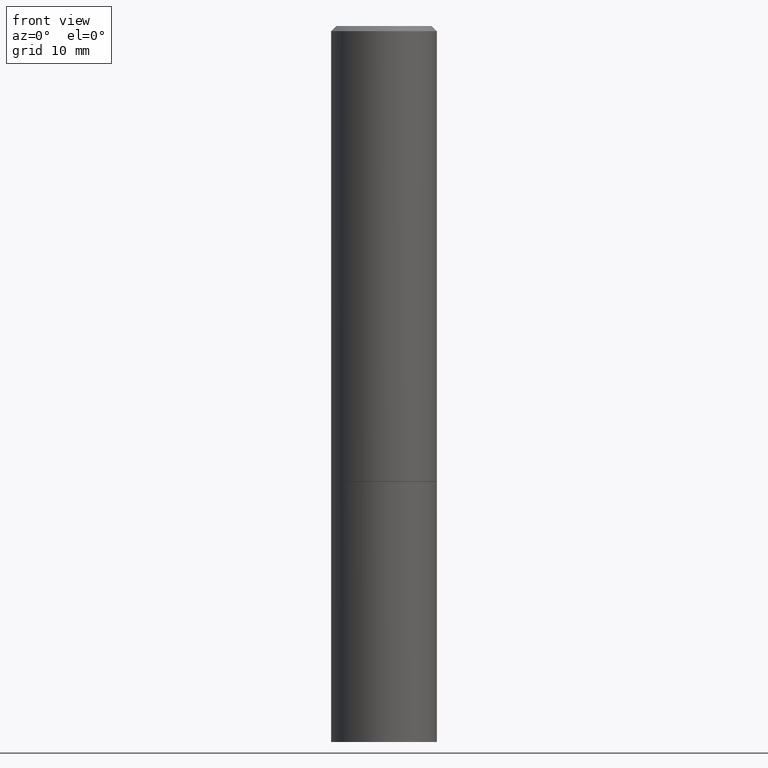
[diagram: clean part render]
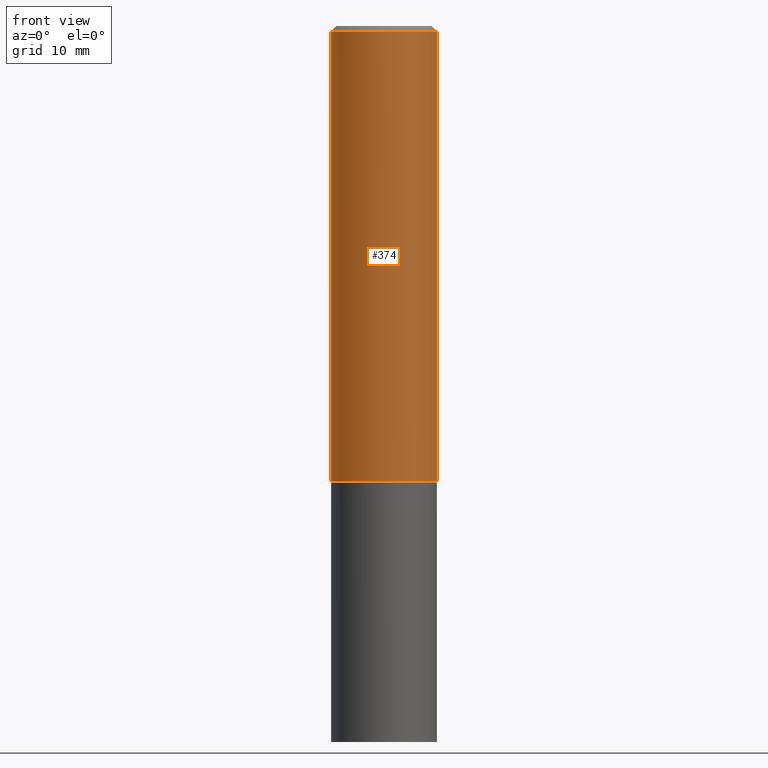
[diagram: same view with one face highlighted and labeled with its STEP entity id]
A machine part, front view. The second image highlights one B-rep face of the part: STEP entity #374.
In plain terms, the highlighted cylindrical surface (partial cylindrical patch) has radius 5.1587 mm, axis along (-0, 0, 1).
Its self-contained STEP definition (entity closure, byte-faithful):
#22 = DIRECTION ( 'NONE',  ( 1.000000000000000000, -6.982962677686264344E-15, 0.000000000000000000 ) ) ;
#38 = CYLINDRICAL_SURFACE ( 'NONE', #110, 0.2030999999999999472 ) ;
#42 = FACE_OUTER_BOUND ( 'NONE', #74, .T. ) ;
#58 = ORIENTED_EDGE ( 'NONE', *, *, #318, .F. ) ;
#71 = EDGE_CURVE ( 'NONE', #227, #266, #168, .T. ) ;
#74 = EDGE_LOOP ( 'NONE', ( #58, #188, #321, #152 ) ) ;
#80 = AXIS2_PLACEMENT_3D ( 'NONE', #362, #294, #156 ) ;
#94 = EDGE_CURVE ( 'NONE', #387, #325, #292, .T. ) ;
#110 = AXIS2_PLACEMENT_3D ( 'NONE', #340, #135, #223 ) ;
#126 = LINE ( 'NONE', #320, #271 ) ;
#135 = DIRECTION ( 'NONE',  ( -2.445468806185136597E-29, 3.491481338843145583E-15, 1.000000000000000000 ) ) ;
#146 = AXIS2_PLACEMENT_3D ( 'NONE', #239, #189, #22 ) ;
#152 = ORIENTED_EDGE ( 'NONE', *, *, #71, .F. ) ;
#156 = DIRECTION ( 'NONE',  ( 1.000000000000000000, -6.982962677686266711E-15, 0.000000000000000000 ) ) ;
#168 = CIRCLE ( 'NONE', #80, 0.2030999999999998362 ) ;
#188 = ORIENTED_EDGE ( 'NONE', *, *, #94, .T. ) ;
#189 = DIRECTION ( 'NONE',  ( -2.445468806185136597E-29, 3.491481338843145583E-15, 1.000000000000000000 ) ) ;
#192 = CARTESIAN_POINT ( 'NONE',  ( -0.2031000000000000583, -1.645102947877997012E-15, -1.748999999999999888 ) ) ;
#212 = CARTESIAN_POINT ( 'NONE',  ( 0.2031000000000000028, -7.524840581474740861E-15, -1.748999999999999888 ) ) ;
#223 = DIRECTION ( 'NONE',  ( 1.000000000000000000, -6.982962677686266711E-15, 4.876176775795935793E-29 ) ) ;
#227 = VERTEX_POINT ( 'NONE', #296 ) ;
#231 = VECTOR ( 'NONE', #358, 39.37007874015748143 ) ;
#239 = CARTESIAN_POINT ( 'NONE',  ( 4.277124942017804002E-29, -6.106600861636660875E-15, -1.748999999999999888 ) ) ;
#240 = CARTESIAN_POINT ( 'NONE',  ( -0.2030999999999999472, 1.443112296328763103E-15, -9.990357168307711400E-30 ) ) ;
#266 = VERTEX_POINT ( 'NONE', #293 ) ;
#271 = VECTOR ( 'NONE', #287, 39.37007874015748143 ) ;
#279 = EDGE_CURVE ( 'NONE', #325, #266, #126, .T. ) ;
#287 = DIRECTION ( 'NONE',  ( -2.445468806185136877E-29, 3.491481338843145188E-15, 1.000000000000000000 ) ) ;
#292 = CIRCLE ( 'NONE', #146, 0.2031000000000000028 ) ;
#293 = CARTESIAN_POINT ( 'NONE',  ( 0.2030999999999998362, -1.463196770124260168E-15, -0.02000000000000004552 ) ) ;
#294 = DIRECTION ( 'NONE',  ( -2.445468806185136597E-29, 3.491481338843145583E-15, 1.000000000000000000 ) ) ;
#296 = CARTESIAN_POINT ( 'NONE',  ( -0.2030999999999998362, 1.348410093061216491E-15, -0.02000000000000004552 ) ) ;
#318 = EDGE_CURVE ( 'NONE', #387, #227, #386, .T. ) ;
#320 = CARTESIAN_POINT ( 'NONE',  ( 0.2030999999999999472, -1.418239719838080381E-15, 9.903515031641543342E-30 ) ) ;
#321 = ORIENTED_EDGE ( 'NONE', *, *, #279, .T. ) ;
#325 = VERTEX_POINT ( 'NONE', #212 ) ;
#340 = CARTESIAN_POINT ( 'NONE',  ( 0.000000000000000000, 0.000000000000000000, 0.000000000000000000 ) ) ;
#358 = DIRECTION ( 'NONE',  ( -2.445468806185136877E-29, 3.491481338843145188E-15, 1.000000000000000000 ) ) ;
#362 = CARTESIAN_POINT ( 'NONE',  ( 4.890937612370284544E-31, -6.982962677686307633E-17, -0.02000000000000004552 ) ) ;
#374 = ADVANCED_FACE ( 'NONE', ( #42 ), #38, .T. ) ;
#386 = LINE ( 'NONE', #240, #231 ) ;
#387 = VERTEX_POINT ( 'NONE', #192 ) ;